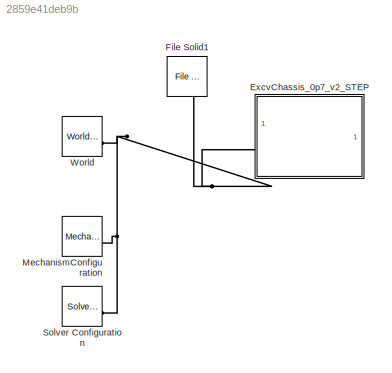
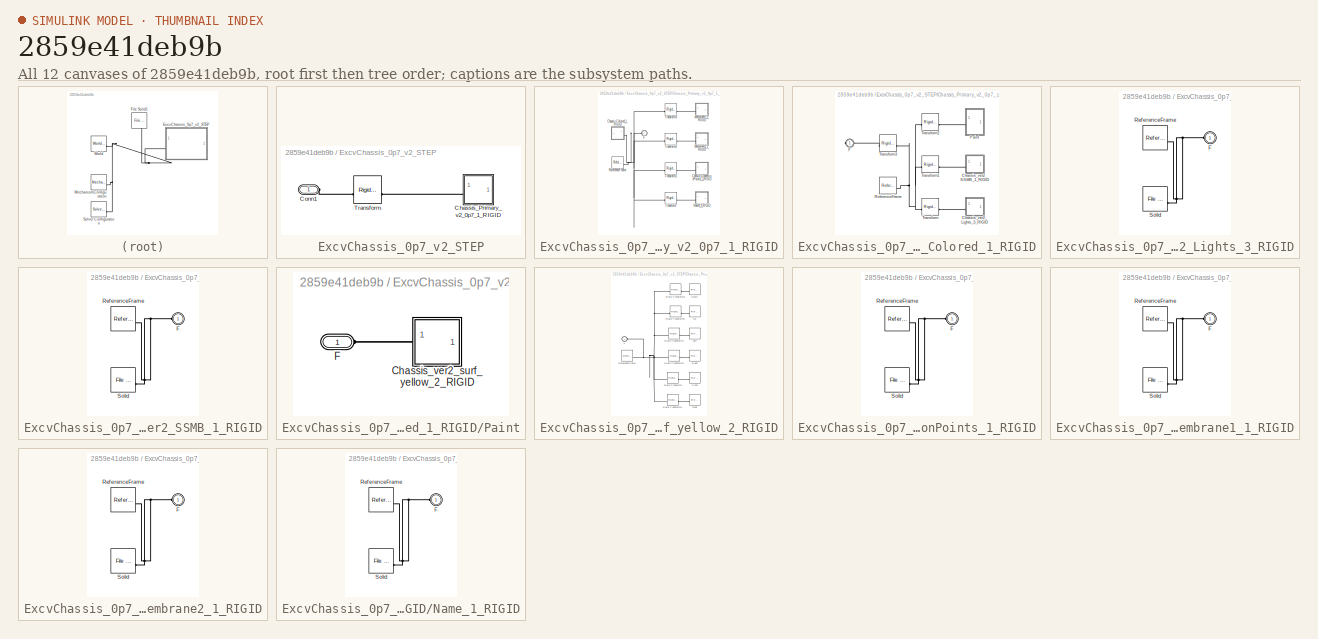
[diagram: thumbnail index - all 12 canvases of the model, root first then tree order]
MODEL slx_2859e41deb9b
KIND model
CONFIG SolverName = VariableStepAuto
BLOCK [SubSystem] ExcvChassis_0p7_v2_STEP
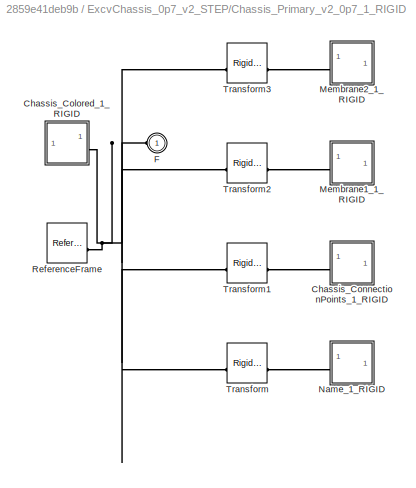
BLOCK [SubSystem] ExcvChassis_0p7_v2_STEP/Chassis_Primary_v2_0p7_1_RIGID
BLOCK [SubSystem] ExcvChassis_0p7_v2_STEP/Chassis_Primary_v2_0p7_1_RIGID/Chassis_Colored_1_RIGID
BLOCK [SubSystem] ExcvChassis_0p7_v2_STEP/Chassis_Primary_v2_0p7_1_RIGID/Chassis_Colored_1_RIGID/Chassis_ver2_Lights_3_RIGID
BLOCK [PMIOPort] ExcvChassis_0p7_v2_STEP/Chassis_Primary_v2_0p7_1_RIGID/Chassis_Colored_1_RIGID/Chassis_ver2_Lights_3_RIGID/F
  Side = Left
BLOCK [Reference] ExcvChassis_0p7_v2_STEP/Chassis_Primary_v2_0p7_1_RIGID/Chassis_Colored_1_RIGID/Chassis_ver2_Lights_3_RIGID/ReferenceFrame  REF=sm_lib/Frames and
Transforms/Reference
Frame
  SourceBlock = sm_lib/Frames and\nTransforms/Reference\nFrame
  SourceType = Reference\nFrame
BLOCK [Reference] ExcvChassis_0p7_v2_STEP/Chassis_Primary_v2_0p7_1_RIGID/Chassis_Colored_1_RIGID/Chassis_ver2_Lights_3_RIGID/Solid  REF=sm_lib/Body Elements/File Solid
  SourceBlock = sm_lib/Body Elements/File Solid
  SourceType = File Solid
BLOCK [SubSystem] ExcvChassis_0p7_v2_STEP/Chassis_Primary_v2_0p7_1_RIGID/Chassis_Colored_1_RIGID/Chassis_ver2_SSMB_1_RIGID
BLOCK [PMIOPort] ExcvChassis_0p7_v2_STEP/Chassis_Primary_v2_0p7_1_RIGID/Chassis_Colored_1_RIGID/Chassis_ver2_SSMB_1_RIGID/F
  Side = Left
BLOCK [Reference] ExcvChassis_0p7_v2_STEP/Chassis_Primary_v2_0p7_1_RIGID/Chassis_Colored_1_RIGID/Chassis_ver2_SSMB_1_RIGID/ReferenceFrame  REF=sm_lib/Frames and
Transforms/Reference
Frame
  SourceBlock = sm_lib/Frames and\nTransforms/Reference\nFrame
  SourceType = Reference\nFrame
BLOCK [Reference] ExcvChassis_0p7_v2_STEP/Chassis_Primary_v2_0p7_1_RIGID/Chassis_Colored_1_RIGID/Chassis_ver2_SSMB_1_RIGID/Solid  REF=sm_lib/Body Elements/File Solid
  SourceBlock = sm_lib/Body Elements/File Solid
  SourceType = File Solid
BLOCK [PMIOPort] ExcvChassis_0p7_v2_STEP/Chassis_Primary_v2_0p7_1_RIGID/Chassis_Colored_1_RIGID/F
  Side = Right
BLOCK [SubSystem] ExcvChassis_0p7_v2_STEP/Chassis_Primary_v2_0p7_1_RIGID/Chassis_Colored_1_RIGID/Paint
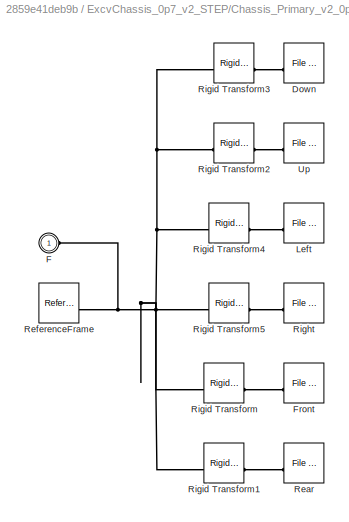
BLOCK [SubSystem] ExcvChassis_0p7_v2_STEP/Chassis_Primary_v2_0p7_1_RIGID/Chassis_Colored_1_RIGID/Paint/Chassis_ver2_surf_yellow_2_RIGID
BLOCK [Reference] ExcvChassis_0p7_v2_STEP/Chassis_Primary_v2_0p7_1_RIGID/Chassis_Colored_1_RIGID/Paint/Chassis_ver2_surf_yellow_2_RIGID/Down  REF=sm_lib/Body Elements/File Solid
  NameLocation = top
  SourceBlock = sm_lib/Body Elements/File Solid
  SourceType = File Solid
BLOCK [PMIOPort] ExcvChassis_0p7_v2_STEP/Chassis_Primary_v2_0p7_1_RIGID/Chassis_Colored_1_RIGID/Paint/Chassis_ver2_surf_yellow_2_RIGID/F
  NameLocation = top
  Side = Left
BLOCK [Reference] ExcvChassis_0p7_v2_STEP/Chassis_Primary_v2_0p7_1_RIGID/Chassis_Colored_1_RIGID/Paint/Chassis_ver2_surf_yellow_2_RIGID/Front  REF=sm_lib/Body Elements/File Solid
  NameLocation = top
  SourceBlock = sm_lib/Body Elements/File Solid
  SourceType = File Solid
BLOCK [Reference] ExcvChassis_0p7_v2_STEP/Chassis_Primary_v2_0p7_1_RIGID/Chassis_Colored_1_RIGID/Paint/Chassis_ver2_surf_yellow_2_RIGID/Left  REF=sm_lib/Body Elements/File Solid
  NameLocation = top
  SourceBlock = sm_lib/Body Elements/File Solid
  SourceType = File Solid
BLOCK [Reference] ExcvChassis_0p7_v2_STEP/Chassis_Primary_v2_0p7_1_RIGID/Chassis_Colored_1_RIGID/Paint/Chassis_ver2_surf_yellow_2_RIGID/Rear  REF=sm_lib/Body Elements/File Solid
  NameLocation = top
  SourceBlock = sm_lib/Body Elements/File Solid
  SourceType = File Solid
BLOCK [Reference] ExcvChassis_0p7_v2_STEP/Chassis_Primary_v2_0p7_1_RIGID/Chassis_Colored_1_RIGID/Paint/Chassis_ver2_surf_yellow_2_RIGID/ReferenceFrame  REF=sm_lib/Frames and
Transforms/Reference
Frame
  SourceBlock = sm_lib/Frames and\nTransforms/Reference\nFrame
  SourceType = Reference\nFrame
BLOCK [Reference] ExcvChassis_0p7_v2_STEP/Chassis_Primary_v2_0p7_1_RIGID/Chassis_Colored_1_RIGID/Paint/Chassis_ver2_surf_yellow_2_RIGID/Right  REF=sm_lib/Body Elements/File Solid
  NameLocation = top
  SourceBlock = sm_lib/Body Elements/File Solid
  SourceType = File Solid
BLOCK [Reference] ExcvChassis_0p7_v2_STEP/Chassis_Primary_v2_0p7_1_RIGID/Chassis_Colored_1_RIGID/Paint/Chassis_ver2_surf_yellow_2_RIGID/Rigid Transform  REF=sm_lib/Frames and
Transforms/Rigid
Transform
  SourceBlock = sm_lib/Frames and\nTransforms/Rigid\nTransform
  SourceType = Rigid\nTransform
BLOCK [Reference] ExcvChassis_0p7_v2_STEP/Chassis_Primary_v2_0p7_1_RIGID/Chassis_Colored_1_RIGID/Paint/Chassis_ver2_surf_yellow_2_RIGID/Rigid Transform1  REF=sm_lib/Frames and
Transforms/Rigid
Transform
  SourceBlock = sm_lib/Frames and\nTransforms/Rigid\nTransform
  SourceType = Rigid\nTransform
BLOCK [Reference] ExcvChassis_0p7_v2_STEP/Chassis_Primary_v2_0p7_1_RIGID/Chassis_Colored_1_RIGID/Paint/Chassis_ver2_surf_yellow_2_RIGID/Rigid Transform2  REF=sm_lib/Frames and
Transforms/Rigid
Transform
  SourceBlock = sm_lib/Frames and\nTransforms/Rigid\nTransform
  SourceType = Rigid\nTransform
BLOCK [Reference] ExcvChassis_0p7_v2_STEP/Chassis_Primary_v2_0p7_1_RIGID/Chassis_Colored_1_RIGID/Paint/Chassis_ver2_surf_yellow_2_RIGID/Rigid Transform3  REF=sm_lib/Frames and
Transforms/Rigid
Transform
  SourceBlock = sm_lib/Frames and\nTransforms/Rigid\nTransform
  SourceType = Rigid\nTransform
BLOCK [Reference] ExcvChassis_0p7_v2_STEP/Chassis_Primary_v2_0p7_1_RIGID/Chassis_Colored_1_RIGID/Paint/Chassis_ver2_surf_yellow_2_RIGID/Rigid Transform4  REF=sm_lib/Frames and
Transforms/Rigid
Transform
  SourceBlock = sm_lib/Frames and\nTransforms/Rigid\nTransform
  SourceType = Rigid\nTransform
BLOCK [Reference] ExcvChassis_0p7_v2_STEP/Chassis_Primary_v2_0p7_1_RIGID/Chassis_Colored_1_RIGID/Paint/Chassis_ver2_surf_yellow_2_RIGID/Rigid Transform5  REF=sm_lib/Frames and
Transforms/Rigid
Transform
  SourceBlock = sm_lib/Frames and\nTransforms/Rigid\nTransform
  SourceType = Rigid\nTransform
BLOCK [Reference] ExcvChassis_0p7_v2_STEP/Chassis_Primary_v2_0p7_1_RIGID/Chassis_Colored_1_RIGID/Paint/Chassis_ver2_surf_yellow_2_RIGID/Up  REF=sm_lib/Body Elements/File Solid
  NameLocation = top
  SourceBlock = sm_lib/Body Elements/File Solid
  SourceType = File Solid
BLOCK [PMIOPort] ExcvChassis_0p7_v2_STEP/Chassis_Primary_v2_0p7_1_RIGID/Chassis_Colored_1_RIGID/Paint/F
  Side = Left
BLOCK [Reference] ExcvChassis_0p7_v2_STEP/Chassis_Primary_v2_0p7_1_RIGID/Chassis_Colored_1_RIGID/ReferenceFrame  REF=sm_lib/Frames and
Transforms/Reference
Frame
  SourceBlock = sm_lib/Frames and\nTransforms/Reference\nFrame
  SourceType = Reference\nFrame
BLOCK [Reference] ExcvChassis_0p7_v2_STEP/Chassis_Primary_v2_0p7_1_RIGID/Chassis_Colored_1_RIGID/Transform  REF=sm_lib/Frames and
Transforms/Rigid
Transform
  SourceBlock = sm_lib/Frames and\nTransforms/Rigid\nTransform
  SourceType = Rigid\nTransform
BLOCK [Reference] ExcvChassis_0p7_v2_STEP/Chassis_Primary_v2_0p7_1_RIGID/Chassis_Colored_1_RIGID/Transform1  REF=sm_lib/Frames and
Transforms/Rigid
Transform
  SourceBlock = sm_lib/Frames and\nTransforms/Rigid\nTransform
  SourceType = Rigid\nTransform
BLOCK [Reference] ExcvChassis_0p7_v2_STEP/Chassis_Primary_v2_0p7_1_RIGID/Chassis_Colored_1_RIGID/Transform2  REF=sm_lib/Frames and
Transforms/Rigid
Transform
  SourceBlock = sm_lib/Frames and\nTransforms/Rigid\nTransform
  SourceType = Rigid\nTransform
BLOCK [Reference] ExcvChassis_0p7_v2_STEP/Chassis_Primary_v2_0p7_1_RIGID/Chassis_Colored_1_RIGID/Transform3  REF=sm_lib/Frames and
Transforms/Rigid
Transform
  SourceBlock = sm_lib/Frames and\nTransforms/Rigid\nTransform
  SourceType = Rigid\nTransform
BLOCK [SubSystem] ExcvChassis_0p7_v2_STEP/Chassis_Primary_v2_0p7_1_RIGID/Chassis_ConnectionPoints_1_RIGID
BLOCK [PMIOPort] ExcvChassis_0p7_v2_STEP/Chassis_Primary_v2_0p7_1_RIGID/Chassis_ConnectionPoints_1_RIGID/F
  Side = Left
BLOCK [Reference] ExcvChassis_0p7_v2_STEP/Chassis_Primary_v2_0p7_1_RIGID/Chassis_ConnectionPoints_1_RIGID/ReferenceFrame  REF=sm_lib/Frames and
Transforms/Reference
Frame
  SourceBlock = sm_lib/Frames and\nTransforms/Reference\nFrame
  SourceType = Reference\nFrame
BLOCK [Reference] ExcvChassis_0p7_v2_STEP/Chassis_Primary_v2_0p7_1_RIGID/Chassis_ConnectionPoints_1_RIGID/Solid  REF=sm_lib/Body Elements/File Solid
  SourceBlock = sm_lib/Body Elements/File Solid
  SourceType = File Solid
BLOCK [PMIOPort] ExcvChassis_0p7_v2_STEP/Chassis_Primary_v2_0p7_1_RIGID/F
  Side = Left
BLOCK [SubSystem] ExcvChassis_0p7_v2_STEP/Chassis_Primary_v2_0p7_1_RIGID/Membrane1_1_RIGID
BLOCK [PMIOPort] ExcvChassis_0p7_v2_STEP/Chassis_Primary_v2_0p7_1_RIGID/Membrane1_1_RIGID/F
  Side = Left
BLOCK [Reference] ExcvChassis_0p7_v2_STEP/Chassis_Primary_v2_0p7_1_RIGID/Membrane1_1_RIGID/ReferenceFrame  REF=sm_lib/Frames and
Transforms/Reference
Frame
  SourceBlock = sm_lib/Frames and\nTransforms/Reference\nFrame
  SourceType = Reference\nFrame
BLOCK [Reference] ExcvChassis_0p7_v2_STEP/Chassis_Primary_v2_0p7_1_RIGID/Membrane1_1_RIGID/Solid  REF=sm_lib/Body Elements/File Solid
  SourceBlock = sm_lib/Body Elements/File Solid
  SourceType = File Solid
BLOCK [SubSystem] ExcvChassis_0p7_v2_STEP/Chassis_Primary_v2_0p7_1_RIGID/Membrane2_1_RIGID
BLOCK [PMIOPort] ExcvChassis_0p7_v2_STEP/Chassis_Primary_v2_0p7_1_RIGID/Membrane2_1_RIGID/F
  Side = Left
BLOCK [Reference] ExcvChassis_0p7_v2_STEP/Chassis_Primary_v2_0p7_1_RIGID/Membrane2_1_RIGID/ReferenceFrame  REF=sm_lib/Frames and
Transforms/Reference
Frame
  SourceBlock = sm_lib/Frames and\nTransforms/Reference\nFrame
  SourceType = Reference\nFrame
BLOCK [Reference] ExcvChassis_0p7_v2_STEP/Chassis_Primary_v2_0p7_1_RIGID/Membrane2_1_RIGID/Solid  REF=sm_lib/Body Elements/File Solid
  SourceBlock = sm_lib/Body Elements/File Solid
  SourceType = File Solid
BLOCK [SubSystem] ExcvChassis_0p7_v2_STEP/Chassis_Primary_v2_0p7_1_RIGID/Name_1_RIGID
BLOCK [PMIOPort] ExcvChassis_0p7_v2_STEP/Chassis_Primary_v2_0p7_1_RIGID/Name_1_RIGID/F
  Side = Left
BLOCK [Reference] ExcvChassis_0p7_v2_STEP/Chassis_Primary_v2_0p7_1_RIGID/Name_1_RIGID/ReferenceFrame  REF=sm_lib/Frames and
Transforms/Reference
Frame
  SourceBlock = sm_lib/Frames and\nTransforms/Reference\nFrame
  SourceType = Reference\nFrame
BLOCK [Reference] ExcvChassis_0p7_v2_STEP/Chassis_Primary_v2_0p7_1_RIGID/Name_1_RIGID/Solid  REF=sm_lib/Body Elements/File Solid
  SourceBlock = sm_lib/Body Elements/File Solid
  SourceType = File Solid
BLOCK [Reference] ExcvChassis_0p7_v2_STEP/Chassis_Primary_v2_0p7_1_RIGID/ReferenceFrame  REF=sm_lib/Frames and
Transforms/Reference
Frame
  SourceBlock = sm_lib/Frames and\nTransforms/Reference\nFrame
  SourceType = Reference\nFrame
BLOCK [Reference] ExcvChassis_0p7_v2_STEP/Chassis_Primary_v2_0p7_1_RIGID/Transform  REF=sm_lib/Frames and
Transforms/Rigid
Transform
  SourceBlock = sm_lib/Frames and\nTransforms/Rigid\nTransform
  SourceType = Rigid\nTransform
BLOCK [Reference] ExcvChassis_0p7_v2_STEP/Chassis_Primary_v2_0p7_1_RIGID/Transform1  REF=sm_lib/Frames and
Transforms/Rigid
Transform
  SourceBlock = sm_lib/Frames and\nTransforms/Rigid\nTransform
  SourceType = Rigid\nTransform
BLOCK [Reference] ExcvChassis_0p7_v2_STEP/Chassis_Primary_v2_0p7_1_RIGID/Transform2  REF=sm_lib/Frames and
Transforms/Rigid
Transform
  SourceBlock = sm_lib/Frames and\nTransforms/Rigid\nTransform
  SourceType = Rigid\nTransform
BLOCK [Reference] ExcvChassis_0p7_v2_STEP/Chassis_Primary_v2_0p7_1_RIGID/Transform3  REF=sm_lib/Frames and
Transforms/Rigid
Transform
  SourceBlock = sm_lib/Frames and\nTransforms/Rigid\nTransform
  SourceType = Rigid\nTransform
BLOCK [PMIOPort] ExcvChassis_0p7_v2_STEP/Conn1
  Side = Left
BLOCK [Reference] ExcvChassis_0p7_v2_STEP/Transform  REF=sm_lib/Frames and
Transforms/Rigid
Transform
  SourceBlock = sm_lib/Frames and\nTransforms/Rigid\nTransform
  SourceType = Rigid\nTransform
BLOCK [Reference] File Solid1  REF=sm_lib/Body Elements/File Solid
  NameLocation = left
  SourceBlock = sm_lib/Body Elements/File Solid
  SourceType = File Solid
BLOCK [Reference] MechanismConfiguration  REF=sm_lib/Utilities/Mechanism
Configuration
  SourceBlock = sm_lib/Utilities/Mechanism\nConfiguration
  SourceType = Mechanism\nConfiguration
BLOCK [Reference] Solver Configuration  REF=nesl_utility/Solver
Configuration
  SourceBlock = nesl_utility/Solver\nConfiguration
  SourceType = Solver\nConfiguration
BLOCK [Reference] World  REF=sm_lib/Frames and
Transforms/World Frame
  SourceBlock = sm_lib/Frames and\nTransforms/World Frame
  SourceType = World Frame
PNET net1: ExcvChassis_0p7_v2_STEP/Chassis_Primary_v2_0p7_1_RIGID/Chassis_Colored_1_RIGID/Chassis_ver2_Lights_3_RIGID/F:RConn1 -- ExcvChassis_0p7_v2_STEP/Chassis_Primary_v2_0p7_1_RIGID/Chassis_Colored_1_RIGID/Chassis_ver2_Lights_3_RIGID/ReferenceFrame:RConn1 -- ExcvChassis_0p7_v2_STEP/Chassis_Primary_v2_0p7_1_RIGID/Chassis_Colored_1_RIGID/Chassis_ver2_Lights_3_RIGID/Solid:RConn1
PLINE ExcvChassis_0p7_v2_STEP/Chassis_Primary_v2_0p7_1_RIGID/Chassis_Colored_1_RIGID/Chassis_ver2_Lights_3_RIGID:LConn1 -- ExcvChassis_0p7_v2_STEP/Chassis_Primary_v2_0p7_1_RIGID/Chassis_Colored_1_RIGID/Transform:RConn1
PNET net2: ExcvChassis_0p7_v2_STEP/Chassis_Primary_v2_0p7_1_RIGID/Chassis_Colored_1_RIGID/Chassis_ver2_SSMB_1_RIGID/F:RConn1 -- ExcvChassis_0p7_v2_STEP/Chassis_Primary_v2_0p7_1_RIGID/Chassis_Colored_1_RIGID/Chassis_ver2_SSMB_1_RIGID/ReferenceFrame:RConn1 -- ExcvChassis_0p7_v2_STEP/Chassis_Primary_v2_0p7_1_RIGID/Chassis_Colored_1_RIGID/Chassis_ver2_SSMB_1_RIGID/Solid:RConn1
PLINE ExcvChassis_0p7_v2_STEP/Chassis_Primary_v2_0p7_1_RIGID/Chassis_Colored_1_RIGID/Chassis_ver2_SSMB_1_RIGID:LConn1 -- ExcvChassis_0p7_v2_STEP/Chassis_Primary_v2_0p7_1_RIGID/Chassis_Colored_1_RIGID/Transform1:RConn1
PLINE ExcvChassis_0p7_v2_STEP/Chassis_Primary_v2_0p7_1_RIGID/Chassis_Colored_1_RIGID/F:RConn1 -- ExcvChassis_0p7_v2_STEP/Chassis_Primary_v2_0p7_1_RIGID/Chassis_Colored_1_RIGID/Transform3:LConn1
PLINE ExcvChassis_0p7_v2_STEP/Chassis_Primary_v2_0p7_1_RIGID/Chassis_Colored_1_RIGID/Paint/Chassis_ver2_surf_yellow_2_RIGID/Down:RConn1 -- ExcvChassis_0p7_v2_STEP/Chassis_Primary_v2_0p7_1_RIGID/Chassis_Colored_1_RIGID/Paint/Chassis_ver2_surf_yellow_2_RIGID/Rigid Transform3:RConn1
PNET net3: ExcvChassis_0p7_v2_STEP/Chassis_Primary_v2_0p7_1_RIGID/Chassis_Colored_1_RIGID/Paint/Chassis_ver2_surf_yellow_2_RIGID/F:RConn1 -- ExcvChassis_0p7_v2_STEP/Chassis_Primary_v2_0p7_1_RIGID/Chassis_Colored_1_RIGID/Paint/Chassis_ver2_surf_yellow_2_RIGID/ReferenceFrame:RConn1 -- ExcvChassis_0p7_v2_STEP/Chassis_Primary_v2_0p7_1_RIGID/Chassis_Colored_1_RIGID/Paint/Chassis_ver2_surf_yellow_2_RIGID/Rigid Transform1:LConn1 -- ExcvChassis_0p7_v2_STEP/Chassis_Primary_v2_0p7_1_RIGID/Chassis_Colored_1_RIGID/Paint/Chassis_ver2_surf_yellow_2_RIGID/Rigid Transform2:LConn1 -- ExcvChassis_0p7_v2_STEP/Chassis_Primary_v2_0p7_1_RIGID/Chassis_Colored_1_RIGID/Paint/Chassis_ver2_surf_yellow_2_RIGID/Rigid Transform3:LConn1 -- ExcvChassis_0p7_v2_STEP/Chassis_Primary_v2_0p7_1_RIGID/Chassis_Colored_1_RIGID/Paint/Chassis_ver2_surf_yellow_2_RIGID/Rigid Transform4:LConn1 -- ExcvChassis_0p7_v2_STEP/Chassis_Primary_v2_0p7_1_RIGID/Chassis_Colored_1_RIGID/Paint/Chassis_ver2_surf_yellow_2_RIGID/Rigid Transform5:LConn1 -- ExcvChassis_0p7_v2_STEP/Chassis_Primary_v2_0p7_1_RIGID/Chassis_Colored_1_RIGID/Paint/Chassis_ver2_surf_yellow_2_RIGID/Rigid Transform:LConn1
PLINE ExcvChassis_0p7_v2_STEP/Chassis_Primary_v2_0p7_1_RIGID/Chassis_Colored_1_RIGID/Paint/Chassis_ver2_surf_yellow_2_RIGID/Front:RConn1 -- ExcvChassis_0p7_v2_STEP/Chassis_Primary_v2_0p7_1_RIGID/Chassis_Colored_1_RIGID/Paint/Chassis_ver2_surf_yellow_2_RIGID/Rigid Transform:RConn1
PLINE ExcvChassis_0p7_v2_STEP/Chassis_Primary_v2_0p7_1_RIGID/Chassis_Colored_1_RIGID/Paint/Chassis_ver2_surf_yellow_2_RIGID/Left:RConn1 -- ExcvChassis_0p7_v2_STEP/Chassis_Primary_v2_0p7_1_RIGID/Chassis_Colored_1_RIGID/Paint/Chassis_ver2_surf_yellow_2_RIGID/Rigid Transform4:RConn1
PLINE ExcvChassis_0p7_v2_STEP/Chassis_Primary_v2_0p7_1_RIGID/Chassis_Colored_1_RIGID/Paint/Chassis_ver2_surf_yellow_2_RIGID/Rear:RConn1 -- ExcvChassis_0p7_v2_STEP/Chassis_Primary_v2_0p7_1_RIGID/Chassis_Colored_1_RIGID/Paint/Chassis_ver2_surf_yellow_2_RIGID/Rigid Transform1:RConn1
PLINE ExcvChassis_0p7_v2_STEP/Chassis_Primary_v2_0p7_1_RIGID/Chassis_Colored_1_RIGID/Paint/Chassis_ver2_surf_yellow_2_RIGID/Right:RConn1 -- ExcvChassis_0p7_v2_STEP/Chassis_Primary_v2_0p7_1_RIGID/Chassis_Colored_1_RIGID/Paint/Chassis_ver2_surf_yellow_2_RIGID/Rigid Transform5:RConn1
PLINE ExcvChassis_0p7_v2_STEP/Chassis_Primary_v2_0p7_1_RIGID/Chassis_Colored_1_RIGID/Paint/Chassis_ver2_surf_yellow_2_RIGID/Rigid Transform2:RConn1 -- ExcvChassis_0p7_v2_STEP/Chassis_Primary_v2_0p7_1_RIGID/Chassis_Colored_1_RIGID/Paint/Chassis_ver2_surf_yellow_2_RIGID/Up:RConn1
PLINE ExcvChassis_0p7_v2_STEP/Chassis_Primary_v2_0p7_1_RIGID/Chassis_Colored_1_RIGID/Paint/Chassis_ver2_surf_yellow_2_RIGID:LConn1 -- ExcvChassis_0p7_v2_STEP/Chassis_Primary_v2_0p7_1_RIGID/Chassis_Colored_1_RIGID/Paint/F:RConn1
PLINE ExcvChassis_0p7_v2_STEP/Chassis_Primary_v2_0p7_1_RIGID/Chassis_Colored_1_RIGID/Paint:LConn1 -- ExcvChassis_0p7_v2_STEP/Chassis_Primary_v2_0p7_1_RIGID/Chassis_Colored_1_RIGID/Transform2:RConn1
PNET net4: ExcvChassis_0p7_v2_STEP/Chassis_Primary_v2_0p7_1_RIGID/Chassis_Colored_1_RIGID/ReferenceFrame:RConn1 -- ExcvChassis_0p7_v2_STEP/Chassis_Primary_v2_0p7_1_RIGID/Chassis_Colored_1_RIGID/Transform1:LConn1 -- ExcvChassis_0p7_v2_STEP/Chassis_Primary_v2_0p7_1_RIGID/Chassis_Colored_1_RIGID/Transform2:LConn1 -- ExcvChassis_0p7_v2_STEP/Chassis_Primary_v2_0p7_1_RIGID/Chassis_Colored_1_RIGID/Transform3:RConn1 -- ExcvChassis_0p7_v2_STEP/Chassis_Primary_v2_0p7_1_RIGID/Chassis_Colored_1_RIGID/Transform:LConn1
PNET net5: ExcvChassis_0p7_v2_STEP/Chassis_Primary_v2_0p7_1_RIGID/Chassis_Colored_1_RIGID:RConn1 -- ExcvChassis_0p7_v2_STEP/Chassis_Primary_v2_0p7_1_RIGID/F:RConn1 -- ExcvChassis_0p7_v2_STEP/Chassis_Primary_v2_0p7_1_RIGID/ReferenceFrame:RConn1 -- ExcvChassis_0p7_v2_STEP/Chassis_Primary_v2_0p7_1_RIGID/Transform1:LConn1 -- ExcvChassis_0p7_v2_STEP/Chassis_Primary_v2_0p7_1_RIGID/Transform2:LConn1 -- ExcvChassis_0p7_v2_STEP/Chassis_Primary_v2_0p7_1_RIGID/Transform3:LConn1 -- ExcvChassis_0p7_v2_STEP/Chassis_Primary_v2_0p7_1_RIGID/Transform:LConn1
PNET net6: ExcvChassis_0p7_v2_STEP/Chassis_Primary_v2_0p7_1_RIGID/Chassis_ConnectionPoints_1_RIGID/F:RConn1 -- ExcvChassis_0p7_v2_STEP/Chassis_Primary_v2_0p7_1_RIGID/Chassis_ConnectionPoints_1_RIGID/ReferenceFrame:RConn1 -- ExcvChassis_0p7_v2_STEP/Chassis_Primary_v2_0p7_1_RIGID/Chassis_ConnectionPoints_1_RIGID/Solid:RConn1
PLINE ExcvChassis_0p7_v2_STEP/Chassis_Primary_v2_0p7_1_RIGID/Chassis_ConnectionPoints_1_RIGID:LConn1 -- ExcvChassis_0p7_v2_STEP/Chassis_Primary_v2_0p7_1_RIGID/Transform1:RConn1
PNET net7: ExcvChassis_0p7_v2_STEP/Chassis_Primary_v2_0p7_1_RIGID/Membrane1_1_RIGID/F:RConn1 -- ExcvChassis_0p7_v2_STEP/Chassis_Primary_v2_0p7_1_RIGID/Membrane1_1_RIGID/ReferenceFrame:RConn1 -- ExcvChassis_0p7_v2_STEP/Chassis_Primary_v2_0p7_1_RIGID/Membrane1_1_RIGID/Solid:RConn1
PLINE ExcvChassis_0p7_v2_STEP/Chassis_Primary_v2_0p7_1_RIGID/Membrane1_1_RIGID:LConn1 -- ExcvChassis_0p7_v2_STEP/Chassis_Primary_v2_0p7_1_RIGID/Transform2:RConn1
PNET net8: ExcvChassis_0p7_v2_STEP/Chassis_Primary_v2_0p7_1_RIGID/Membrane2_1_RIGID/F:RConn1 -- ExcvChassis_0p7_v2_STEP/Chassis_Primary_v2_0p7_1_RIGID/Membrane2_1_RIGID/ReferenceFrame:RConn1 -- ExcvChassis_0p7_v2_STEP/Chassis_Primary_v2_0p7_1_RIGID/Membrane2_1_RIGID/Solid:RConn1
PLINE ExcvChassis_0p7_v2_STEP/Chassis_Primary_v2_0p7_1_RIGID/Membrane2_1_RIGID:LConn1 -- ExcvChassis_0p7_v2_STEP/Chassis_Primary_v2_0p7_1_RIGID/Transform3:RConn1
PNET net9: ExcvChassis_0p7_v2_STEP/Chassis_Primary_v2_0p7_1_RIGID/Name_1_RIGID/F:RConn1 -- ExcvChassis_0p7_v2_STEP/Chassis_Primary_v2_0p7_1_RIGID/Name_1_RIGID/ReferenceFrame:RConn1 -- ExcvChassis_0p7_v2_STEP/Chassis_Primary_v2_0p7_1_RIGID/Name_1_RIGID/Solid:RConn1
PLINE ExcvChassis_0p7_v2_STEP/Chassis_Primary_v2_0p7_1_RIGID/Name_1_RIGID:LConn1 -- ExcvChassis_0p7_v2_STEP/Chassis_Primary_v2_0p7_1_RIGID/Transform:RConn1
PLINE ExcvChassis_0p7_v2_STEP/Chassis_Primary_v2_0p7_1_RIGID:LConn1 -- ExcvChassis_0p7_v2_STEP/Transform:RConn1
PLINE ExcvChassis_0p7_v2_STEP/Conn1:RConn1 -- ExcvChassis_0p7_v2_STEP/Transform:LConn1
PNET net10: ExcvChassis_0p7_v2_STEP:LConn1 -- File Solid1:RConn1 -- MechanismConfiguration:RConn1 -- Solver Configuration:RConn1 -- World:RConn1
note: PNET lines group multi-terminal physical nets as a canonical sorted terminal list (undirected conserving connections); 2-terminal nets keep the pairwise PLINE form
